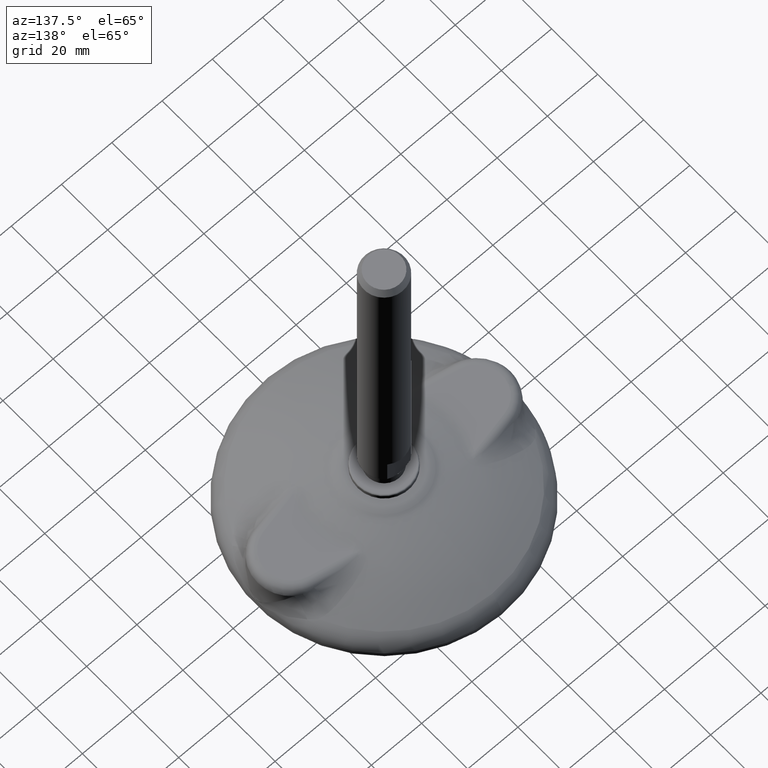
[diagram: clean part render]
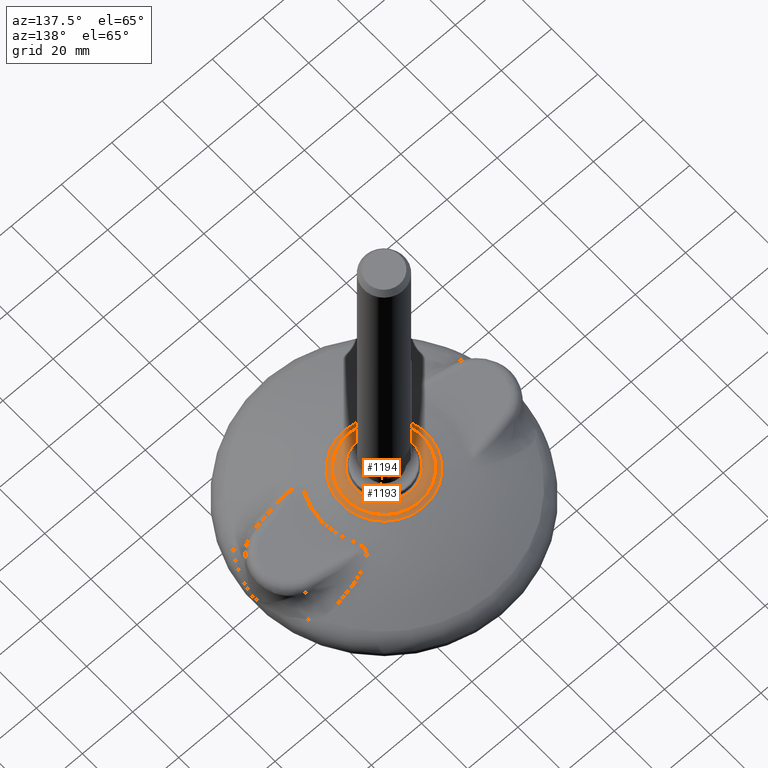
[diagram: same view with one multi-face feature highlighted, each face labeled with its STEP entity id]
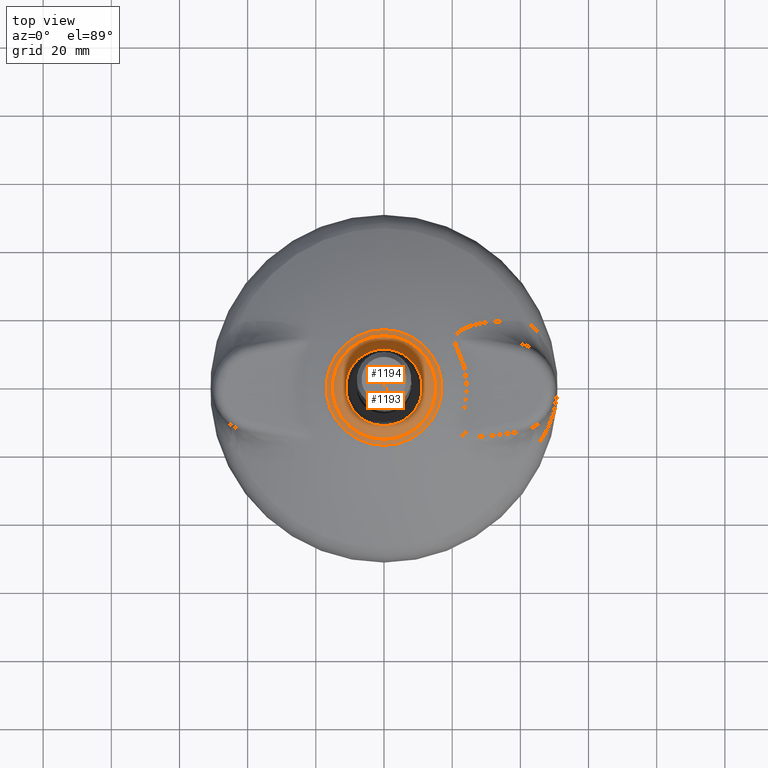
[diagram: same view with one multi-face feature highlighted, each face labeled with its STEP entity id]
A machine part, auxiliary view. The highlighted faces form ONE feature: a constant-radius fillet chain: 2 tangent blend faces with common blend radius 7.5 mm. The faces share edges in the B-rep.
A second angle (top view) of the same feature is appended — it is thin or edge-on in the first view.
Their STEP definitions:
[1] entity #1194 (Torus):
#42=TOROIDAL_SURFACE('',#1331,11.2500000000002,8.);
#215=FACE_OUTER_BOUND('',#301,.T.);
#301=EDGE_LOOP('',(#824,#825,#826,#827));
#377=CIRCLE('',#1291,11.2500000000003);
#401=CIRCLE('',#1329,15.2112618341804);
#403=CIRCLE('',#1332,8.);
#468=VERTEX_POINT('',#1801);
#516=VERTEX_POINT('',#4613);
#572=EDGE_CURVE('',#468,#468,#377,.T.);
#633=EDGE_CURVE('',#516,#516,#401,.T.);
#635=EDGE_CURVE('',#468,#516,#403,.T.);
#824=ORIENTED_EDGE('',*,*,#572,.F.);
#825=ORIENTED_EDGE('',*,*,#635,.T.);
#826=ORIENTED_EDGE('',*,*,#633,.T.);
#827=ORIENTED_EDGE('',*,*,#635,.F.);
#1194=ADVANCED_FACE('',(#215),#42,.T.);
#1291=AXIS2_PLACEMENT_3D('',#1802,#1456,#1457);
#1329=AXIS2_PLACEMENT_3D('',#4614,#1537,#1538);
#1331=AXIS2_PLACEMENT_3D('',#4616,#1541,#1542);
#1332=AXIS2_PLACEMENT_3D('',#4617,#1543,#1544);
#1456=DIRECTION('center_axis',(0.,1.171453E-15,1.));
#1457=DIRECTION('ref_axis',(0.,-1.,1.171453E-15));
#1537=DIRECTION('center_axis',(0.,1.171453E-15,1.));
#1538=DIRECTION('ref_axis',(0.,-1.,1.171453E-15));
#1541=DIRECTION('center_axis',(0.,1.171453E-15,1.));
#1542=DIRECTION('ref_axis',(0.,-1.,1.10733932845729E-15));
#1543=DIRECTION('center_axis',(-1.,-1.22464679914735E-16,1.43461616680156E-31));
#1544=DIRECTION('ref_axis',(-1.22464679914735E-16,1.,-1.15347846714301E-15));
#1801=CARTESIAN_POINT('',(-1.37772764904081E-15,11.2500000000004,22.5000074721176));
#1802=CARTESIAN_POINT('Origin',(0.,5.271542E-14,22.5000074721176));
#4613=CARTESIAN_POINT('',(-1.86284231162213E-15,15.2112618341804,21.4504322563353));
#4614=CARTESIAN_POINT('Origin',(0.,5.025636E-14,21.4504322563353));
#4616=CARTESIAN_POINT('Origin',(0.,1.698608E-14,14.5000074721176));
#4617=CARTESIAN_POINT('Origin',(-1.3777276490408E-15,11.2500000000002,14.5000074721176));
[2] entity #1193 (Torus):
#41=TOROIDAL_SURFACE('',#1328,18.7330000000003,7.);
#214=FACE_OUTER_BOUND('',#300,.T.);
#300=EDGE_LOOP('',(#820,#821,#822,#823));
#392=CIRCLE('',#1313,16.986756733163);
#401=CIRCLE('',#1329,15.2112618341804);
#402=CIRCLE('',#1330,7.);
#496=VERTEX_POINT('',#3158);
#516=VERTEX_POINT('',#4613);
#605=EDGE_CURVE('',#496,#496,#392,.T.);
#633=EDGE_CURVE('',#516,#516,#401,.T.);
#634=EDGE_CURVE('',#516,#496,#402,.T.);
#820=ORIENTED_EDGE('',*,*,#633,.F.);
#821=ORIENTED_EDGE('',*,*,#634,.T.);
#822=ORIENTED_EDGE('',*,*,#605,.T.);
#823=ORIENTED_EDGE('',*,*,#634,.F.);
#1193=ADVANCED_FACE('',(#214),#41,.F.);
#1313=AXIS2_PLACEMENT_3D('',#3159,#1502,#1503);
#1328=AXIS2_PLACEMENT_3D('',#4612,#1535,#1536);
#1329=AXIS2_PLACEMENT_3D('',#4614,#1537,#1538);
#1330=AXIS2_PLACEMENT_3D('',#4615,#1539,#1540);
#1502=DIRECTION('center_axis',(0.,1.171453E-15,1.));
#1503=DIRECTION('ref_axis',(0.,-1.,1.171453E-15));
#1535=DIRECTION('center_axis',(0.,1.171453E-15,1.));
#1536=DIRECTION('ref_axis',(0.,-1.,1.10448488051932E-15));
#1537=DIRECTION('center_axis',(0.,1.171453E-15,1.));
#1538=DIRECTION('ref_axis',(0.,-1.,1.171453E-15));
#1539=DIRECTION('center_axis',(1.,1.22464679914735E-16,-1.43461616680156E-31));
#1540=DIRECTION('ref_axis',(-1.22464679914735E-16,1.,-1.20803033806801E-15));
#3158=CARTESIAN_POINT('',(-2.08027772611628E-15,16.986756733163,20.7213177423081));
#3159=CARTESIAN_POINT('Origin',(0.,4.854811E-14,20.7213177423081));
#4612=CARTESIAN_POINT('Origin',(0.,3.221498E-14,27.5000074721176));
#4613=CARTESIAN_POINT('',(-1.86284231162213E-15,15.2112618341804,21.4504322563353));
#4614=CARTESIAN_POINT('Origin',(0.,5.025636E-14,21.4504322563353));
#4615=CARTESIAN_POINT('Origin',(-2.29413084884277E-15,18.7330000000003,
27.5000074721176));